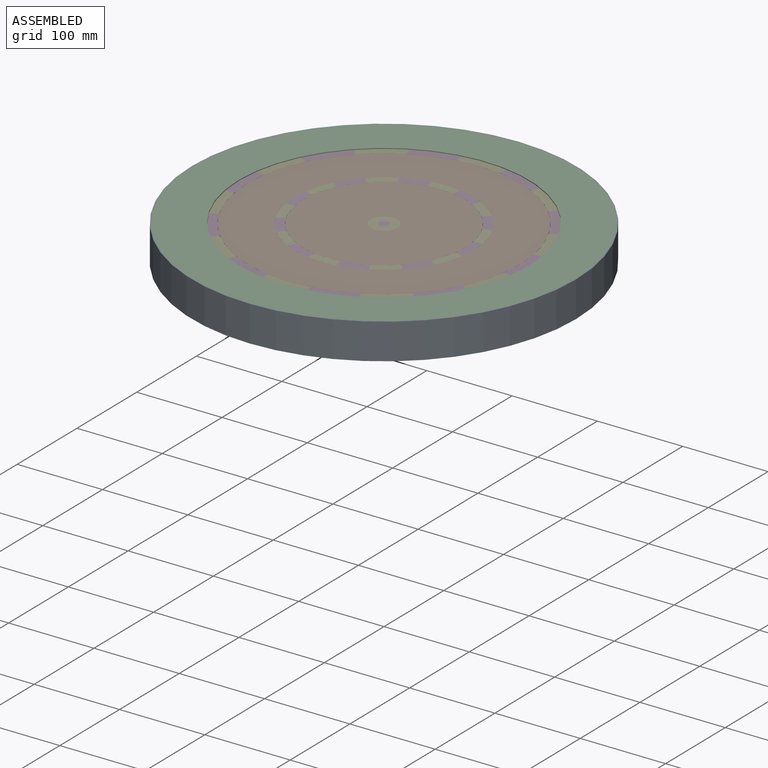
[diagram: assembled view]
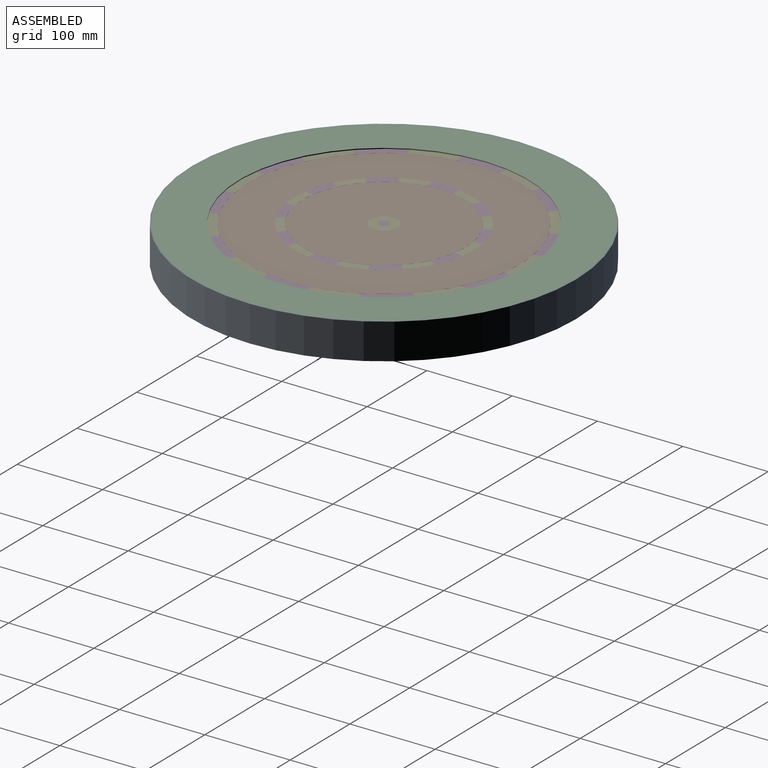
[diagram: assembled view, second angle]
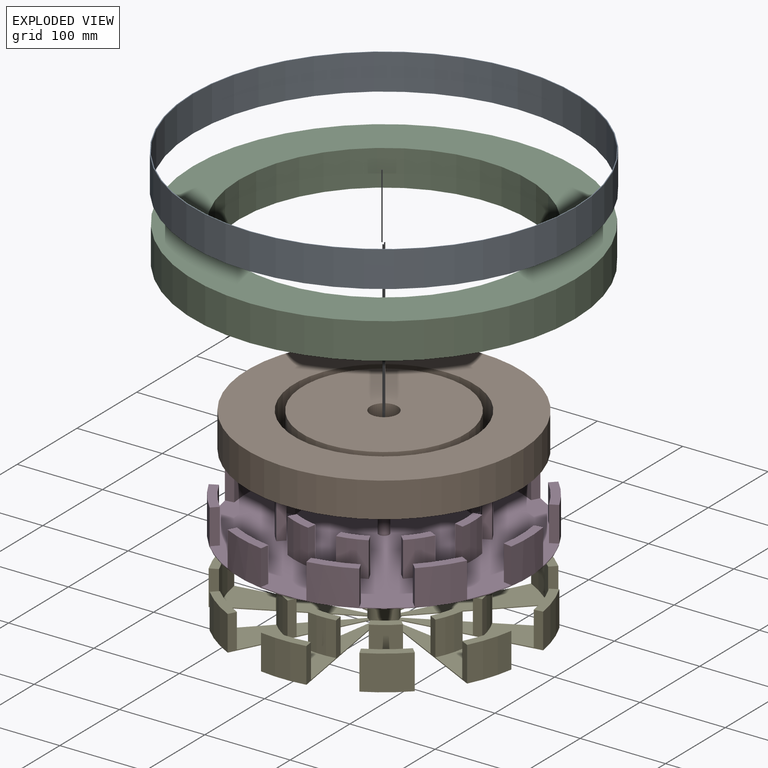
[diagram: exploded view]
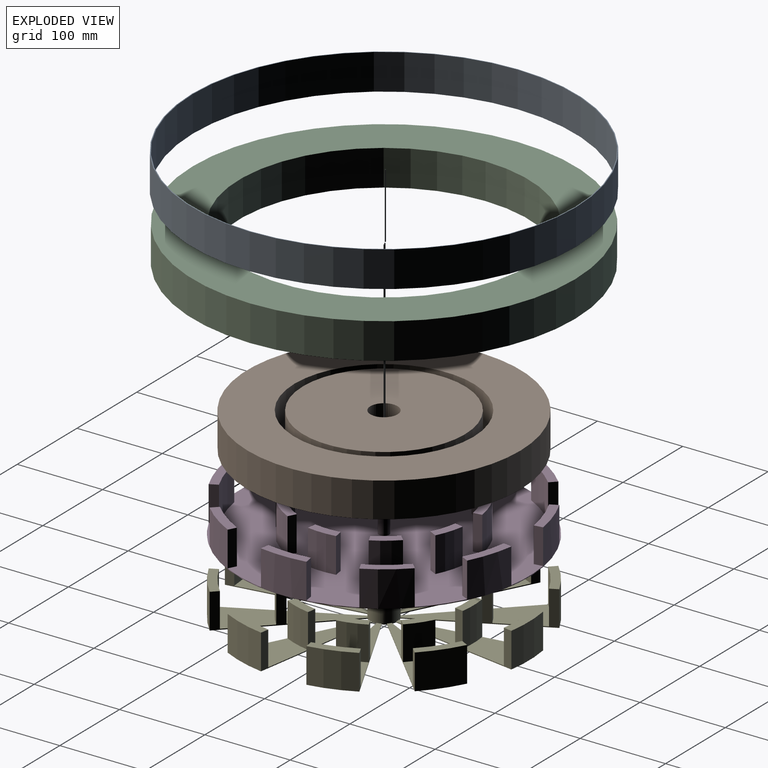
[diagram: exploded view, second angle]
ASSEMBLY  parts=5 mates=4
PART A: 4 faces, bbox 450x450x42 mm
  f0: plane 450x450mm, normal (0,0,-1), area 1410.6mm2, adj f1,f3
  f1: cylinder r=224mm len=448mm, axis (0,0,-1), area 59112.2mm2, adj f0,f2
  f2: plane 450x450mm, normal (0,0,1), area 1410.6mm2, adj f1,f3
  f3: cylinder r=225mm len=450mm, axis (0,0,-1), area 59376.1mm2, adj f0,f2
PART B: 9 faces, bbox 320x320x41 mm
  f0: cylinder r=160mm len=320mm, axis (0,0,-1), area 41217.7mm2, adj f1,f8
  f1: plane 320x320mm, normal (0,0,-1), area 80424.8mm2, adj f0
  f2: plane 32x32mm, normal (0,0,1), area 804.2mm2, adj f3
  f3: cylinder r=16mm len=40mm, axis (0,0,-1), area 4021.2mm2, adj f2,f4
  f4: plane 190x190mm, normal (0,0,1), area 27548.6mm2, adj f3,f5
  f5: cylinder r=95mm len=190mm, axis (0,0,-1), area 23876.1mm2, adj f4,f6
  f6: plane 210x210mm, normal (0,0,1), area 6283.2mm2, adj f5,f7
  f7: cylinder r=105mm len=210mm, axis (0,0,-1), area 26389.4mm2, adj f6,f8
  f8: plane 320x320mm, normal (0,0,1), area 45788.7mm2, adj f0,f7
PART C: 4 faces, bbox 448x448x42 mm
  f0: plane 448x448mm, normal (0,0,-1), area 66840.5mm2, adj f1,f3
  f1: cylinder r=170mm len=340mm, axis (0,0,-1), area 44861.9mm2, adj f0,f2
  f2: plane 448x448mm, normal (0,0,1), area 66840.5mm2, adj f1,f3
  f3: cylinder r=224mm len=448mm, axis (0,0,-1), area 59112.2mm2, adj f0,f2
PART D: 95 faces, bbox 340x340x42 mm
  f0: cylinder r=160mm len=41mm, axis (0,0,-1), area 2060.9mm2, adj f10,f54,f90,f93
  f1: cylinder r=160mm len=47.61mm, axis (0,0,-1), area 2060.9mm2, adj f11,f54,f91,f94
  f2: cylinder r=160mm len=50.06mm, axis (0,0,-1), area 2060.9mm2, adj f12,f54,f88,f89
  f3: cylinder r=160mm len=41mm, axis (0,0,-1), area 2060.9mm2, adj f13,f54,f78,f87
  f4: cylinder r=160mm len=41mm, axis (0,0,-1), area 2060.9mm2, adj f14,f54,f84,f85
  f5: cylinder r=160mm len=47.61mm, axis (0,0,-1), area 2060.9mm2, adj f15,f54,f83,f92
  f6: cylinder r=160mm len=41mm, axis (0,0,-1), area 2060.9mm2, adj f16,f54,f80,f81
  f7: cylinder r=160mm len=50.06mm, axis (0,0,-1), area 2060.9mm2, adj f17,f54,f79,f86
  f8: cylinder r=160mm len=47.61mm, axis (0,0,-1), area 2060.9mm2, adj f18,f54,f76,f77
  f9: cylinder r=160mm len=47.61mm, axis (0,0,-1), area 2060.9mm2, adj f19,f54,f75,f82
  f10: plane 47.57x38.33mm, normal (0,0,1), area 518.4mm2, adj f0,f20,f90,f93
  f11: plane 52.15x25.35mm, normal (0,0,1), area 518.4mm2, adj f1,f20,f91,f94
  f12: plane 53.19x11.97mm, normal (0,0,1), area 518.4mm2, adj f2,f20,f88,f89
  f13: plane 47.57x38.33mm, normal (0,0,1), area 518.4mm2, adj f3,f20,f78,f87
  f14: plane 47.57x38.33mm, normal (0,0,1), area 518.4mm2, adj f4,f20,f84,f85
  f15: plane 52.15x25.35mm, normal (0,0,1), area 518.4mm2, adj f5,f20,f83,f92
  f16: plane 47.57x38.33mm, normal (0,0,1), area 518.4mm2, adj f6,f20,f80,f81
  f17: plane 53.19x11.97mm, normal (0,0,1), area 518.4mm2, adj f7,f20,f79,f86
  f18: plane 52.15x25.35mm, normal (0,0,1), area 518.4mm2, adj f8,f20,f76,f77
  f19: plane 52.15x25.35mm, normal (0,0,1), area 518.4mm2, adj f9,f20,f75,f82
  f20: cylinder r=170mm len=340mm, axis (0,0,-1), area 22965mm2, adj f10,f11,f12,f13,f14,f15,f16,f17
  f21: cylinder r=95mm len=41mm, axis (0,0,-1), area 1223.7mm2, adj f31,f54,f69,f74
  f22: cylinder r=95mm len=41mm, axis (0,0,-1), area 1223.7mm2, adj f32,f54,f72,f73
  f23: cylinder r=95mm len=41mm, axis (0,0,-1), area 1223.7mm2, adj f33,f54,f67,f70
  f24: cylinder r=95mm len=41mm, axis (0,0,-1), area 1223.7mm2, adj f34,f54,f57,f68
  f25: cylinder r=95mm len=41mm, axis (0,0,-1), area 1223.7mm2, adj f35,f54,f63,f66
  f26: cylinder r=95mm len=41mm, axis (0,0,-1), area 1223.7mm2, adj f36,f54,f64,f71
  f27: cylinder r=95mm len=41mm, axis (0,0,-1), area 1223.7mm2, adj f37,f54,f59,f62
  f28: cylinder r=95mm len=41mm, axis (0,0,-1), area 1223.7mm2, adj f38,f54,f60,f65
  f29: cylinder r=95mm len=41mm, axis (0,0,-1), area 1223.7mm2, adj f39,f54,f55,f58
  f30: cylinder r=95mm len=41mm, axis (0,0,-1), area 1223.7mm2, adj f40,f54,f56,f61
  f31: plane 31.12x26.38mm, normal (0,0,1), area 314.2mm2, adj f21,f41,f69,f74
  f32: plane 32.81x19.06mm, normal (0,0,1), area 314.2mm2, adj f22,f42,f72,f73
  f33: plane 32.85x11.17mm, normal (0,0,1), area 314.2mm2, adj f23,f43,f67,f70
  f34: plane 31.12x26.38mm, normal (0,0,1), area 314.2mm2, adj f24,f44,f57,f68
  f35: plane 31.12x26.38mm, normal (0,0,1), area 314.2mm2, adj f25,f45,f63,f66
  f36: plane 32.81x19.06mm, normal (0,0,1), area 314.2mm2, adj f26,f46,f64,f71
  f37: plane 31.12x26.38mm, normal (0,0,1), area 314.2mm2, adj f27,f47,f59,f62
  f38: plane 32.85x11.17mm, normal (0,0,1), area 314.2mm2, adj f28,f48,f60,f65
  f39: plane 32.81x19.06mm, normal (0,0,1), area 314.2mm2, adj f29,f49,f55,f58
  f40: plane 32.81x19.06mm, normal (0,0,1), area 314.2mm2, adj f30,f50,f56,f61
  f41: cylinder r=105mm len=41mm, axis (0,0,-1), area 1352.5mm2, adj f31,f54,f69,f74
  f42: cylinder r=105mm len=41mm, axis (0,0,-1), area 1352.5mm2, adj f32,f54,f72,f73
  f43: cylinder r=105mm len=41mm, axis (0,0,-1), area 1352.5mm2, adj f33,f54,f67,f70
  f44: cylinder r=105mm len=41mm, axis (0,0,-1), area 1352.5mm2, adj f34,f54,f57,f68
  f45: cylinder r=105mm len=41mm, axis (0,0,-1), area 1352.5mm2, adj f35,f54,f63,f66
  f46: cylinder r=105mm len=41mm, axis (0,0,-1), area 1352.5mm2, adj f36,f54,f64,f71
  f47: cylinder r=105mm len=41mm, axis (0,0,-1), area 1352.5mm2, adj f37,f54,f59,f62
  f48: cylinder r=105mm len=41mm, axis (0,0,-1), area 1352.5mm2, adj f38,f54,f60,f65
  f49: cylinder r=105mm len=41mm, axis (0,0,-1), area 1352.5mm2, adj f39,f54,f55,f58
  f50: cylinder r=105mm len=41mm, axis (0,0,-1), area 1352.5mm2, adj f40,f54,f56,f61
  f51: plane 340x340mm, normal (0,0,-1), area 90792mm2, adj f20
  f52: plane 12x12mm, normal (0,0,1), area 113.1mm2, adj f53
  f53: cylinder r=6mm len=41mm, axis (0,0,-1), area 1545.7mm2, adj f52,f54
  f54: plane 340x335.81mm, normal (0,0,1), area 82353.7mm2, adj f0,f1,f2,f3,f4,f5,f6,f7
  f55: plane 41x9.88mm, normal (-0.99,0.16,0), area 410mm2, adj f29,f39,f49,f54
  f56: plane 41x9.88mm, normal (0.99,0.16,0), area 410mm2, adj f30,f40,f50,f54
  f57: plane 41x7.07mm, normal (-0.71,0.71,0), area 410mm2, adj f24,f34,f44,f54
  f58: plane 41x8.91mm, normal (0.89,-0.45,0), area 410mm2, adj f29,f39,f49,f54
  f59: plane 41x8.91mm, normal (-0.45,-0.89,0), area 410mm2, adj f27,f37,f47,f54
  f60: plane 41x9.88mm, normal (0.16,0.99,0), area 410mm2, adj f28,f38,f48,f54
  f61: plane 41x8.91mm, normal (-0.89,-0.45,0), area 410mm2, adj f30,f40,f50,f54
  f62: plane 41x7.07mm, normal (0.71,0.71,0), area 410mm2, adj f27,f37,f47,f54
  f63: plane 41x7.07mm, normal (0.71,-0.71,0), area 410mm2, adj f25,f35,f45,f54
  f64: plane 41x8.91mm, normal (-0.89,0.45,0), area 410mm2, adj f26,f36,f46,f54
  f65: plane 41x9.88mm, normal (0.16,-0.99,0), area 410mm2, adj f28,f38,f48,f54
  f66: plane 41x8.91mm, normal (-0.45,0.89,0), area 410mm2, adj f25,f35,f45,f54
  f67: plane 41x9.88mm, normal (-0.16,0.99,0), area 410mm2, adj f23,f33,f43,f54
  f68: plane 41x8.91mm, normal (0.45,-0.89,0), area 410mm2, adj f24,f34,f44,f54
  f69: plane 41x8.91mm, normal (0.45,0.89,0), area 410mm2, adj f21,f31,f41,f54
  f70: plane 41x9.88mm, normal (-0.16,-0.99,0), area 410mm2, adj f23,f33,f43,f54
  f71: plane 41x9.88mm, normal (0.99,-0.16,0), area 410mm2, adj f26,f36,f46,f54
  f72: plane 41x9.88mm, normal (-0.99,-0.16,0), area 410mm2, adj f22,f32,f42,f54
  f73: plane 41x8.91mm, normal (0.89,0.45,0), area 410mm2, adj f22,f32,f42,f54
  f74: plane 41x7.07mm, normal (-0.71,-0.71,0), area 410mm2, adj f21,f31,f41,f54
  f75: plane 41x9.88mm, normal (0.99,0.16,0), area 410mm2, adj f9,f19,f20,f54
  f76: plane 41x9.88mm, normal (-0.99,0.16,0), area 410mm2, adj f8,f18,f20,f54
  f77: plane 41x8.91mm, normal (0.89,-0.45,0), area 410mm2, adj f8,f18,f20,f54
  f78: plane 41x7.07mm, normal (-0.71,0.71,0), area 410mm2, adj f3,f13,f20,f54
  f79: plane 41x9.88mm, normal (0.16,0.99,0), area 410mm2, adj f7,f17,f20,f54
  f80: plane 41x8.91mm, normal (-0.45,-0.89,0), area 410mm2, adj f6,f16,f20,f54
  f81: plane 41x7.07mm, normal (0.71,0.71,0), area 410mm2, adj f6,f16,f20,f54
  f82: plane 41x8.91mm, normal (-0.89,-0.45,0), area 410mm2, adj f9,f19,f20,f54
  f83: plane 41x8.91mm, normal (-0.89,0.45,0), area 410mm2, adj f5,f15,f20,f54
  f84: plane 41x7.07mm, normal (0.71,-0.71,0), area 410mm2, adj f4,f14,f20,f54
  f85: plane 41x8.91mm, normal (-0.45,0.89,0), area 410mm2, adj f4,f14,f20,f54
  f86: plane 41x9.88mm, normal (0.16,-0.99,0), area 410mm2, adj f7,f17,f20,f54
  f87: plane 41x8.91mm, normal (0.45,-0.89,0), area 410mm2, adj f3,f13,f20,f54
  f88: plane 41x9.88mm, normal (-0.16,0.99,0), area 410mm2, adj f2,f12,f20,f54
  f89: plane 41x9.88mm, normal (-0.16,-0.99,0), area 410mm2, adj f2,f12,f20,f54
  f90: plane 41x8.91mm, normal (0.45,0.89,0), area 410mm2, adj f0,f10,f20,f54
  f91: plane 41x9.88mm, normal (-0.99,-0.16,0), area 410mm2, adj f1,f11,f20,f54
  f92: plane 41x9.88mm, normal (0.99,-0.16,0), area 410mm2, adj f5,f15,f20,f54
  f93: plane 41x7.07mm, normal (-0.71,-0.71,0), area 410mm2, adj f0,f10,f20,f54
  f94: plane 41x8.91mm, normal (0.89,0.45,0), area 410mm2, adj f1,f11,f20,f54
PART E: 105 faces, bbox 335.8x340x41 mm
  f0: cylinder r=160mm len=50.06mm, axis (0,0,-1), area 2010.6mm2, adj f9,f64,f102,f103
  f1: cylinder r=160mm len=40.5mm, axis (0,0,-1), area 2010.6mm2, adj f10,f65,f98,f101
  f2: cylinder r=160mm len=47.61mm, axis (0,0,-1), area 2010.6mm2, adj f11,f66,f88,f99
  f3: cylinder r=160mm len=47.61mm, axis (0,0,-1), area 2010.6mm2, adj f12,f67,f97,f100
  f4: cylinder r=160mm len=47.61mm, axis (0,0,-1), area 2010.6mm2, adj f13,f68,f90,f95
  f5: cylinder r=160mm len=40.5mm, axis (0,0,-1), area 2010.6mm2, adj f14,f69,f93,f96
  f6: cylinder r=160mm len=40.5mm, axis (0,0,-1), area 2010.6mm2, adj f15,f70,f91,f104
  f7: cylinder r=160mm len=47.61mm, axis (0,0,-1), area 2010.6mm2, adj f16,f71,f89,f92
  f8: cylinder r=160mm len=40.5mm, axis (0,0,-1), area 2010.6mm2, adj f17,f72,f86,f87
  f9: plane 53.19x11.97mm, normal (0,0,1), area 518.4mm2, adj f0,f18,f102,f103
  f10: plane 47.57x38.33mm, normal (0,0,1), area 518.4mm2, adj f1,f19,f98,f101
  f11: plane 52.15x25.35mm, normal (0,0,1), area 518.4mm2, adj f2,f20,f88,f99
  f12: plane 52.15x25.35mm, normal (0,0,1), area 518.4mm2, adj f3,f21,f97,f100
  f13: plane 52.15x25.35mm, normal (0,0,1), area 518.4mm2, adj f4,f22,f90,f95
  f14: plane 47.57x38.33mm, normal (0,0,1), area 518.4mm2, adj f5,f23,f93,f96
  f15: plane 47.57x38.33mm, normal (0,0,1), area 518.4mm2, adj f6,f24,f91,f104
  f16: plane 52.15x25.35mm, normal (0,0,1), area 518.4mm2, adj f7,f25,f89,f92
  f17: plane 47.57x38.33mm, normal (0,0,1), area 518.4mm2, adj f8,f26,f86,f87
  f18: cylinder r=170mm len=53.19mm, axis (0,0,-1), area 2189.7mm2, adj f9,f27,f102,f103
  f19: cylinder r=170mm len=43.03mm, axis (0,0,-1), area 2189.7mm2, adj f10,f27,f98,f101
  f20: cylinder r=170mm len=50.58mm, axis (0,0,-1), area 2189.7mm2, adj f11,f27,f88,f99
  f21: cylinder r=170mm len=50.58mm, axis (0,0,-1), area 2189.7mm2, adj f12,f27,f97,f100
  f22: cylinder r=170mm len=50.58mm, axis (0,0,-1), area 2189.7mm2, adj f13,f27,f90,f95
  f23: cylinder r=170mm len=43.03mm, axis (0,0,-1), area 2189.7mm2, adj f14,f27,f93,f96
  f24: cylinder r=170mm len=43.03mm, axis (0,0,-1), area 2189.7mm2, adj f15,f27,f91,f104
  f25: cylinder r=170mm len=50.58mm, axis (0,0,-1), area 2189.7mm2, adj f16,f27,f89,f92
  f26: cylinder r=170mm len=43.03mm, axis (0,0,-1), area 2189.7mm2, adj f17,f27,f86,f87
  f27: plane 340x335.81mm, normal (0,0,-1), area 45798.1mm2, adj f18,f19,f20,f21,f22,f23,f24,f25
  f28: plane 79.2x29.72mm, normal (0,0,1), area 1377.4mm2, adj f37,f79,f102,f103
  f29: plane 73.33x59.91mm, normal (0,0,1), area 1377.4mm2, adj f38,f79,f98,f101
  f30: plane 79.57x40.63mm, normal (0,0,1), area 1377.4mm2, adj f39,f79,f88,f99
  f31: plane 79.57x40.63mm, normal (0,0,1), area 1377.4mm2, adj f40,f79,f97,f100
  f32: plane 79.57x40.63mm, normal (0,0,1), area 1377.4mm2, adj f41,f79,f90,f95
  f33: plane 73.33x59.91mm, normal (0,0,1), area 1377.4mm2, adj f42,f79,f93,f96
  f34: plane 73.33x59.91mm, normal (0,0,1), area 1377.4mm2, adj f43,f79,f91,f104
  f35: plane 79.57x40.63mm, normal (0,0,1), area 1377.4mm2, adj f44,f79,f89,f92
  f36: plane 73.33x59.91mm, normal (0,0,1), area 1377.4mm2, adj f45,f79,f86,f87
  f37: cylinder r=95mm len=40mm, axis (0,0,-1), area 1193.8mm2, adj f28,f46,f102,f103
  f38: cylinder r=95mm len=40mm, axis (0,0,-1), area 1193.8mm2, adj f29,f47,f98,f101
  f39: cylinder r=95mm len=40mm, axis (0,0,-1), area 1193.8mm2, adj f30,f48,f88,f99
  f40: cylinder r=95mm len=40mm, axis (0,0,-1), area 1193.8mm2, adj f31,f49,f97,f100
  f41: cylinder r=95mm len=40mm, axis (0,0,-1), area 1193.8mm2, adj f32,f50,f90,f95
  f42: cylinder r=95mm len=40mm, axis (0,0,-1), area 1193.8mm2, adj f33,f51,f93,f96
  f43: cylinder r=95mm len=40mm, axis (0,0,-1), area 1193.8mm2, adj f34,f52,f91,f104
  f44: cylinder r=95mm len=40mm, axis (0,0,-1), area 1193.8mm2, adj f35,f53,f89,f92
  f45: cylinder r=95mm len=40mm, axis (0,0,-1), area 1193.8mm2, adj f36,f54,f86,f87
  f46: plane 32.85x11.17mm, normal (0,0,1), area 314.2mm2, adj f37,f55,f102,f103
  f47: plane 31.12x26.38mm, normal (0,0,1), area 314.2mm2, adj f38,f56,f98,f101
  f48: plane 32.81x19.06mm, normal (0,0,1), area 314.2mm2, adj f39,f57,f88,f99
  f49: plane 32.81x19.06mm, normal (0,0,1), area 314.2mm2, adj f40,f58,f97,f100
  f50: plane 32.81x19.06mm, normal (0,0,1), area 314.2mm2, adj f41,f59,f90,f95
  f51: plane 31.12x26.38mm, normal (0,0,1), area 314.2mm2, adj f42,f60,f93,f96
  f52: plane 31.12x26.38mm, normal (0,0,1), area 314.2mm2, adj f43,f61,f91,f104
  f53: plane 32.81x19.06mm, normal (0,0,1), area 314.2mm2, adj f44,f62,f89,f92
  f54: plane 31.12x26.38mm, normal (0,0,1), area 314.2mm2, adj f45,f63,f86,f87
  f55: cylinder r=105mm len=40mm, axis (0,0,-1), area 1319.5mm2, adj f46,f64,f102,f103
  f56: cylinder r=105mm len=40mm, axis (0,0,-1), area 1319.5mm2, adj f47,f65,f98,f101
  f57: cylinder r=105mm len=40mm, axis (0,0,-1), area 1319.5mm2, adj f48,f66,f88,f99
  f58: cylinder r=105mm len=40mm, axis (0,0,-1), area 1319.5mm2, adj f49,f67,f97,f100
  f59: cylinder r=105mm len=40mm, axis (0,0,-1), area 1319.5mm2, adj f50,f68,f90,f95
  f60: cylinder r=105mm len=40mm, axis (0,0,-1), area 1319.5mm2, adj f51,f69,f93,f96
  f61: cylinder r=105mm len=40mm, axis (0,0,-1), area 1319.5mm2, adj f52,f70,f91,f104
  f62: cylinder r=105mm len=40mm, axis (0,0,-1), area 1319.5mm2, adj f53,f71,f89,f92
  f63: cylinder r=105mm len=40mm, axis (0,0,-1), area 1319.5mm2, adj f54,f72,f86,f87
  f64: plane 56.29x50.06mm, normal (0,0,1), area 2289.4mm2, adj f0,f55,f102,f103
  f65: plane 68.32x65.47mm, normal (0,0,1), area 2289.4mm2, adj f1,f56,f98,f101
  f66: plane 64.47x56.21mm, normal (0,0,1), area 2289.4mm2, adj f2,f57,f88,f99
  f67: plane 64.47x56.21mm, normal (0,0,1), area 2289.4mm2, adj f3,f58,f97,f100
  f68: plane 64.47x56.21mm, normal (0,0,1), area 2289.4mm2, adj f4,f59,f90,f95
  f69: plane 68.32x65.47mm, normal (0,0,1), area 2289.4mm2, adj f5,f60,f93,f96
  f70: plane 68.32x65.47mm, normal (0,0,1), area 2289.4mm2, adj f6,f61,f91,f104
  f71: plane 64.47x56.21mm, normal (0,0,1), area 2289.4mm2, adj f7,f62,f89,f92
  f72: plane 68.32x65.47mm, normal (0,0,1), area 2289.4mm2, adj f8,f63,f86,f87
  f73: cylinder r=160mm len=50.06mm, axis (0,0,-1), area 2010.6mm2, adj f74,f84,f85,f94
  f74: plane 53.19x11.97mm, normal (0,0,1), area 518.4mm2, adj f73,f75,f85,f94
  f75: cylinder r=170mm len=53.19mm, axis (0,0,-1), area 2189.7mm2, adj f27,f74,f85,f94
  f76: plane 12x12mm, normal (0,0,1), area 113.1mm2, adj f77
  f77: cylinder r=6mm len=40mm, axis (0,0,-1), area 1508mm2, adj f76,f78
  f78: plane 32x32mm, normal (0,0,1), area 691.2mm2, adj f77,f79
  f79: cylinder r=16mm len=41mm, axis (0,0,-1), area 4071.5mm2, adj f27,f28,f29,f30,f31,f32,f33,f34
  f80: plane 79.2x29.72mm, normal (0,0,1), area 1377.4mm2, adj f79,f81,f85,f94
  f81: cylinder r=95mm len=40mm, axis (0,0,-1), area 1193.8mm2, adj f80,f82,f85,f94
  f82: plane 32.85x11.17mm, normal (0,0,1), area 314.2mm2, adj f81,f83,f85,f94
  f83: cylinder r=105mm len=40mm, axis (0,0,-1), area 1319.5mm2, adj f82,f84,f85,f94
  f84: plane 56.29x50.06mm, normal (0,0,1), area 2289.4mm2, adj f73,f83,f85,f94
  f85: plane 152.1x41mm, normal (0.99,-0.16,0), area 954mm2, adj f27,f73,f74,f75,f79,f80,f81,f82
  f86: plane 137.22x69.91mm, normal (-0.89,0.45,0), area 954mm2, adj f8,f17,f26,f27,f36,f45,f54,f63
  f87: plane 108.89x108.89mm, normal (0.71,-0.71,0), area 954mm2, adj f8,f17,f26,f27,f36,f45,f54,f63
  f88: plane 137.22x69.91mm, normal (-0.45,0.89,0), area 954mm2, adj f2,f11,f20,f27,f30,f39,f48,f57
  f89: plane 152.1x41mm, normal (-0.16,0.99,0), area 954mm2, adj f7,f16,f25,f27,f35,f44,f53,f62
  f90: plane 152.1x41mm, normal (-0.16,-0.99,0), area 954mm2, adj f4,f13,f22,f27,f32,f41,f50,f59
  f91: plane 108.89x108.89mm, normal (-0.71,0.71,0), area 954mm2, adj f6,f15,f24,f27,f34,f43,f52,f61
  f92: plane 137.22x69.91mm, normal (0.45,-0.89,0), area 954mm2, adj f7,f16,f25,f27,f35,f44,f53,f62
  f93: plane 137.22x69.91mm, normal (0.89,0.45,0), area 954mm2, adj f5,f14,f23,f27,f33,f42,f51,f60
  f94: plane 152.1x41mm, normal (-0.99,-0.16,0), area 954mm2, adj f27,f73,f74,f75,f79,f80,f81,f82
  f95: plane 137.22x69.91mm, normal (0.45,0.89,0), area 954mm2, adj f4,f13,f22,f27,f32,f41,f50,f59
  f96: plane 108.89x108.89mm, normal (-0.71,-0.71,0), area 954mm2, adj f5,f14,f23,f27,f33,f42,f51,f60
  f97: plane 137.22x69.91mm, normal (-0.45,-0.89,0), area 954mm2, adj f3,f12,f21,f27,f31,f40,f49,f58
  f98: plane 108.89x108.89mm, normal (0.71,0.71,0), area 954mm2, adj f1,f10,f19,f27,f29,f38,f47,f56
  f99: plane 152.1x41mm, normal (0.16,-0.99,0), area 954mm2, adj f2,f11,f20,f27,f30,f39,f48,f57
  f100: plane 152.1x41mm, normal (0.16,0.99,0), area 954mm2, adj f3,f12,f21,f27,f31,f40,f49,f58
  f101: plane 137.22x69.91mm, normal (-0.89,-0.45,0), area 954mm2, adj f1,f10,f19,f27,f29,f38,f47,f56
  f102: plane 152.1x41mm, normal (0.99,0.16,0), area 954mm2, adj f0,f9,f18,f27,f28,f37,f46,f55
  f103: plane 152.1x41mm, normal (-0.99,0.16,0), area 954mm2, adj f0,f9,f18,f27,f28,f37,f46,f55
  f104: plane 137.22x69.91mm, normal (0.89,-0.45,0), area 954mm2, adj f6,f15,f24,f27,f34,f43,f52,f61
PLACE A at identity
PLACE B t=(0,0,-1)mm
PLACE C at identity
PLACE D t=(0,0,-1)mm
PLACE E t=(0,0,-1)mm
MATE fastened E.f0 <-> D.f0  axis (0,0,1) through (0,0,41)mm
MATE fastened A.f1 <-> C.f1  axis (0,0,1) through (0,0,0)mm
MATE fastened D.f0 <-> C.f1  axis (0,0,1) through (0,0,0)mm
MATE fastened B.f0 <-> E.f0  axis (0,0,1) through (0,0,41)mm
